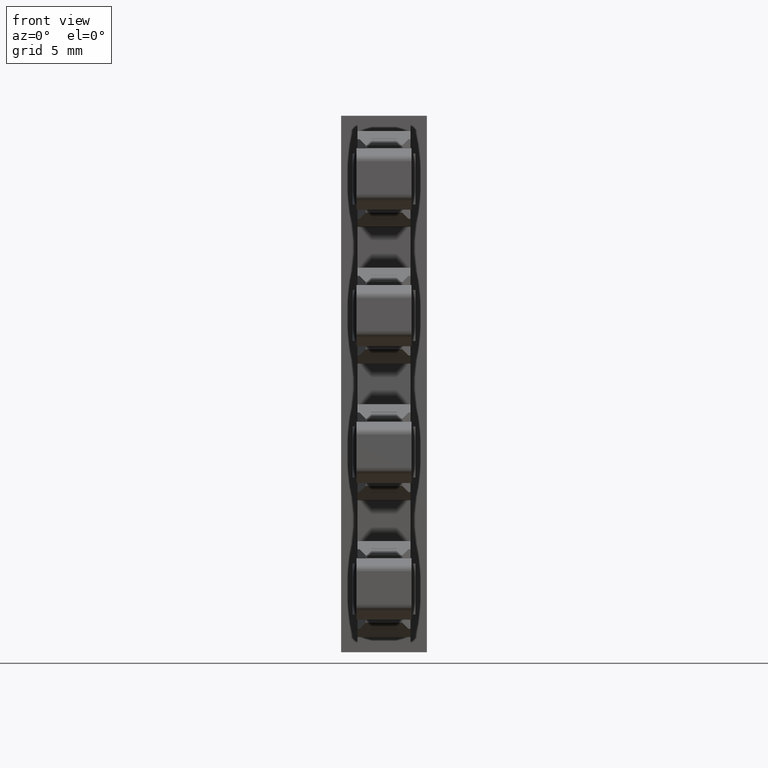
[diagram: clean part render]
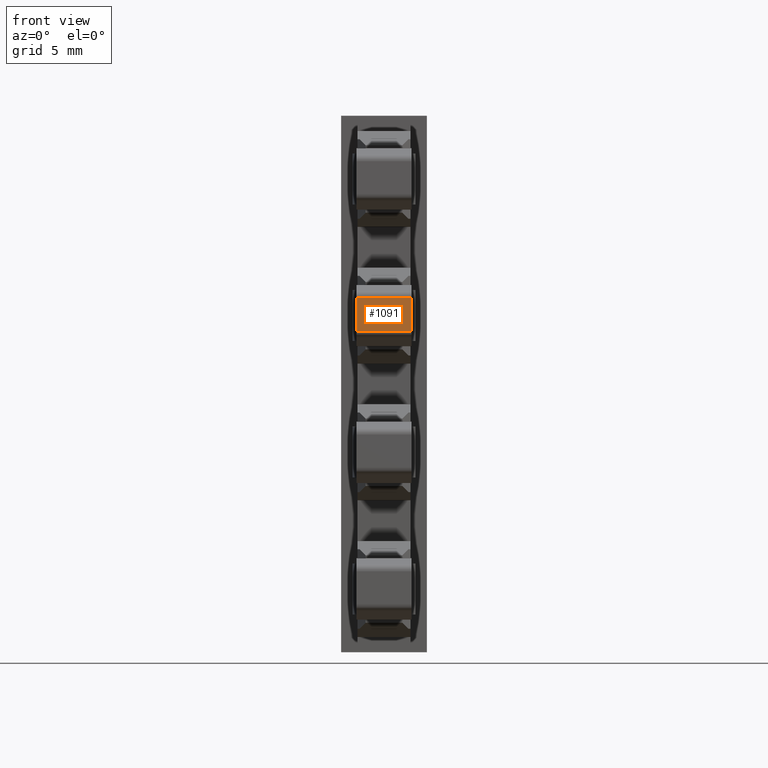
[diagram: same view with one face highlighted and labeled with its STEP entity id]
A machine part, front view. The second image highlights one B-rep face of the part: STEP entity #1091.
In plain terms, the highlighted planar face has unit normal (0, 1, -0).
Its self-contained STEP definition (entity closure, byte-faithful):
#7 = VECTOR ( 'NONE', #3202, 1000.000000000000000 ) ;
#14 = VECTOR ( 'NONE', #3205, 1000.000000000000100 ) ;
#25 = VECTOR ( 'NONE', #3234, 1000.000000000000200 ) ;
#29 = VECTOR ( 'NONE', #3296, 1000.000000000000000 ) ;
#446 = AXIS2_PLACEMENT_3D ( 'NONE', #3705, #3706, #3708 ) ;
#671 = EDGE_CURVE ( 'NONE', #1630, #1620, #3189, .T. ) ;
#677 = EDGE_CURVE ( 'NONE', #1620, #1643, #3176, .T. ) ;
#684 = EDGE_CURVE ( 'NONE', #1631, #1630, #3249, .T. ) ;
#705 = EDGE_CURVE ( 'NONE', #1643, #1631, #3289, .T. ) ;
#1091 = ADVANCED_FACE ( 'NONE', ( #3713 ), #3732, .F. ) ;
#1355 = ORIENTED_EDGE ( 'NONE', *, *, #705, .F. ) ;
#1356 = ORIENTED_EDGE ( 'NONE', *, *, #677, .F. ) ;
#1368 = ORIENTED_EDGE ( 'NONE', *, *, #671, .F. ) ;
#1369 = ORIENTED_EDGE ( 'NONE', *, *, #684, .F. ) ;
#1620 = VERTEX_POINT ( 'NONE', #4649 ) ;
#1630 = VERTEX_POINT ( 'NONE', #4656 ) ;
#1631 = VERTEX_POINT ( 'NONE', #4662 ) ;
#1643 = VERTEX_POINT ( 'NONE', #4755 ) ;
#1894 = EDGE_LOOP ( 'NONE', ( #1369, #1355, #1356, #1368 ) ) ;
#3176 = LINE ( 'NONE', #3199, #14 ) ;
#3189 = LINE ( 'NONE', #3190, #7 ) ;
#3190 = CARTESIAN_POINT ( 'NONE',  ( 1393.430047710925200, 1053.955040641085800, -0.7471850652951577100 ) ) ;
#3199 = CARTESIAN_POINT ( 'NONE',  ( 1381.908868422062800, 1053.955147535323000, -0.7471850652951586000 ) ) ;
#3202 = DIRECTION ( 'NONE',  ( -0.0000000000000000000, -0.0000000000000000000, -1.000000000000000000 ) ) ;
#3205 = DIRECTION ( 'NONE',  ( -0.9999999999550282000, 9.483855583750708700E-006, -1.714874837315605100E-015 ) ) ;
#3234 = DIRECTION ( 'NONE',  ( 0.9999999999550282000, -9.483855583750708700E-006, -0.0000000000000000000 ) ) ;
#3249 = LINE ( 'NONE', #3254, #25 ) ;
#3254 = CARTESIAN_POINT ( 'NONE',  ( 1381.908868422062800, 1053.955147535322300, 0.8676779866391455300 ) ) ;
#3289 = LINE ( 'NONE', #3290, #29 ) ;
#3290 = CARTESIAN_POINT ( 'NONE',  ( 1390.734380130579900, 1053.955061464480000, -0.7471850652951577100 ) ) ;
#3296 = DIRECTION ( 'NONE',  ( 0.0000000000000000000, 0.0000000000000000000, 1.000000000000000000 ) ) ;
#3705 = CARTESIAN_POINT ( 'NONE',  ( 1381.908868422062800, 1053.955147535322300, -0.7471850652951577100 ) ) ;
#3706 = DIRECTION ( 'NONE',  ( 9.483855583750710300E-006, 0.9999999999550283100, -0.0000000000000000000 ) ) ;
#3708 = DIRECTION ( 'NONE',  ( -0.9999999999550282000, 9.483855583750708700E-006, 0.0000000000000000000 ) ) ;
#3713 = FACE_OUTER_BOUND ( 'NONE', #1894, .T. ) ;
#3732 = PLANE ( 'NONE',  #446 ) ;
#4649 = CARTESIAN_POINT ( 'NONE',  ( 1393.430047710925700, 1053.955040641086000, -0.7471850652951396200 ) ) ;
#4656 = CARTESIAN_POINT ( 'NONE',  ( 1393.430047710925200, 1053.955040641085800, 0.8676779866391469700 ) ) ;
#4662 = CARTESIAN_POINT ( 'NONE',  ( 1390.734380130579400, 1053.955061464480000, 0.8676779866391450800 ) ) ;
#4755 = CARTESIAN_POINT ( 'NONE',  ( 1390.734380130579900, 1053.955061464480400, -0.7471850652951433900 ) ) ;